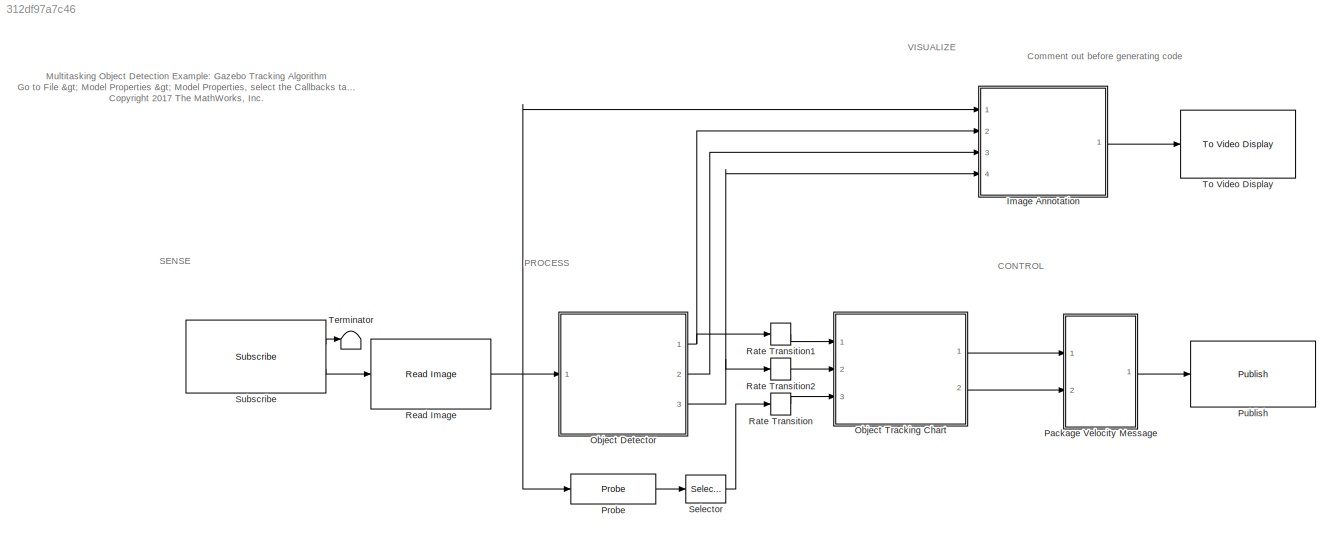
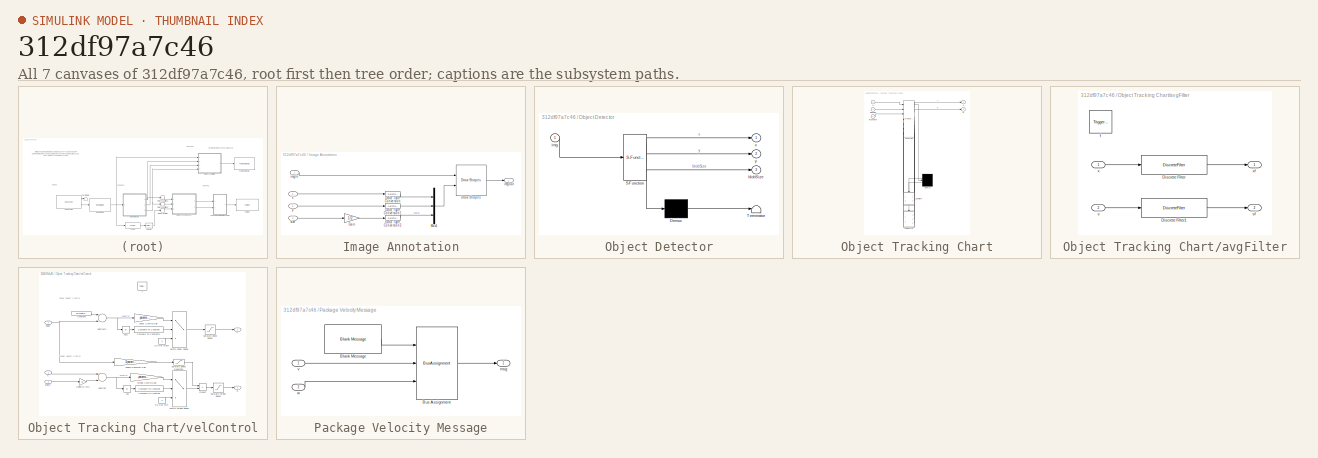
[diagram: thumbnail index - all 7 canvases of the model, root first then tree order]
MODEL slx_312df97a7c46
KIND model
CONFIG AbsTol = auto
CONFIG EnableMultiTasking = on
CONFIG FixedStep = Tfast
CONFIG MaxStep = auto
CONFIG MinStep = auto
CONFIG PreLoadFcn = params = controlParamsGazebo;\nTslow = 0.5;\nTfast = 0.1;\n\nrosshutdown;\nloadIpAddresses;\nrosinit(gazeboIp);
CONFIG RelTol = 1e-3
CONFIG SampleTimeConstraint = Unconstrained
CONFIG Solver = FixedStepDiscrete
CONFIG SolverName = FixedStepDiscrete
CONFIG StartTime = 0.0
CONFIG StopTime = inf
WORKSPACE source: MAT-file member
WORKSPACE SL_ROS_VariableLengthArrays_MaxSizes: struct (value not decoded)
BLOCK [SubSystem] Image Annotation
  Commented = on
  Ports = [4, 1]
  RequestExecContextInheritance = off
  Variant = off
BLOCK [DataTypeConversion] Image Annotation/Data Type Conversion
  OutDataTypeStr = int32
  RndMeth = Floor
  SaturateOnIntegerOverflow = off
BLOCK [DataTypeConversion] Image Annotation/Data Type Conversion1
  OutDataTypeStr = int32
  RndMeth = Floor
  SaturateOnIntegerOverflow = off
BLOCK [DataTypeConversion] Image Annotation/Data Type Conversion2
  OutDataTypeStr = int32
  RndMeth = Floor
  SaturateOnIntegerOverflow = off
BLOCK [Reference] Image Annotation/Draw Shapes  REF=visiontextngfix/Draw Shapes
  Ports = [2, 1]
  SourceBlock = visiontextngfix/Draw Shapes
  SourceProductBaseCode = VP
  SourceProductName = Computer Vision System Toolbox
  SourceType = Draw Shapes
BLOCK [Gain] Image Annotation/Gain
  Gain = 1/2
  OutDataTypeStr = Inherit: Inherit via internal rule
  ParamDataTypeStr = Inherit: Inherit via internal rule
  SaturateOnIntegerOverflow = off
BLOCK [Mux] Image Annotation/Mux1
  DisplayOption = bar
  Inputs = 3
  Ports = [3, 1]
BLOCK [Inport] Image Annotation/imgIn
  IconDisplay = Port number
BLOCK [Outport] Image Annotation/imgOut
  IconDisplay = Port number
BLOCK [Inport] Image Annotation/size
  IconDisplay = Port number
  Port = 4
BLOCK [Inport] Image Annotation/x
  IconDisplay = Port number
  Port = 2
BLOCK [Inport] Image Annotation/y
  IconDisplay = Port number
  Port = 3
BLOCK [SubSystem] Object Detector
  ErrorFcn = Stateflow.Translate.translate
  PermitHierarchicalResolution = ExplicitOnly
  Ports = [1, 3]
  RequestExecContextInheritance = off
  SFBlockType = MATLAB Function
  TreatAsAtomicUnit = on
  Variant = off
BLOCK [Demux] Object Detector/ Demux 
  Outputs = 1
  Ports = [1, 1]
BLOCK [S-Function] Object Detector/ SFunction 
  EnableBusSupport = on
  FunctionName = sf_sfun
  PortCounts = [1 4]
  Ports = [1, 4]
  SFcnIsStateOwnerBlock = off
  SFunctionDeploymentMode = off
  Tag = Stateflow S-Function gazeboExampleMultitasking 1
BLOCK [Terminator] Object Detector/ Terminator 
BLOCK [Outport] Object Detector/blobSize
  IconDisplay = Port number
  Port = 3
BLOCK [Inport] Object Detector/img
  IconDisplay = Port number
BLOCK [Outport] Object Detector/x
  IconDisplay = Port number
BLOCK [Outport] Object Detector/y
  IconDisplay = Port number
  Port = 2
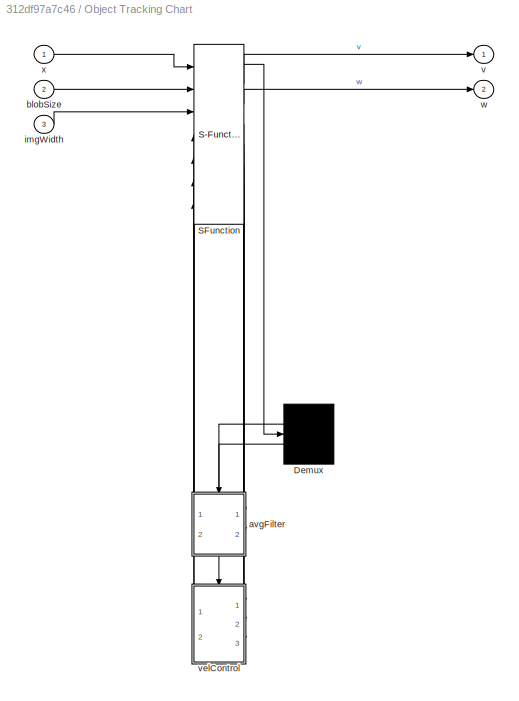
BLOCK [SubSystem] Object Tracking Chart
  ErrorFcn = Stateflow.Translate.translate
  PermitHierarchicalResolution = ExplicitOnly
  Ports = [3, 2]
  RequestExecContextInheritance = off
  SFBlockType = Chart
  TreatAsAtomicUnit = on
  Variant = off
BLOCK [Demux] Object Tracking Chart/ Demux 
  Outputs = 2
  Ports = [1, 2]
BLOCK [S-Function] Object Tracking Chart/ SFunction 
  EnableBusSupport = on
  FunctionName = sf_sfun
  Parameters = params
  PortCounts = [7 8]
  Ports = [7, 8]
  SFcnIsStateOwnerBlock = off
  SFunctionDeploymentMode = off
  Tag = Stateflow S-Function gazeboExampleMultitasking 3
BLOCK [SubSystem] Object Tracking Chart/avgFilter
  Ports = [2, 2, 0, 1]
  PreDeleteFcn = Stateflow.SLINSF.SimulinkMan.removePreDeleteFcn
  RequestExecContextInheritance = off
  UndoDeleteFcn = Stateflow.SLINSF.SimulinkMan.restorePreDeleteFcn
  Variant = off
BLOCK [DiscreteFilter] Object Tracking Chart/avgFilter/Discrete Filter
  Denominator = [params.bufSize]
  InputPortMap = u0
  Numerator = [ones(1,params.bufSize)]
  Ports = [1, 1]
BLOCK [DiscreteFilter] Object Tracking Chart/avgFilter/Discrete Filter1
  Denominator = [params.bufSize]
  InputPortMap = u0
  Numerator = [ones(1,params.bufSize)]
  Ports = [1, 1]
BLOCK [TriggerPort] Object Tracking Chart/avgFilter/f
  CopyFcn = Stateflow.SLINSF.SimulinkMan.removeBlockPreDeleteFcn
  Ports = []
  PreDeleteFcn = Stateflow.SLINSF.SimulinkMan.unsafePredeleteFcn
  StatesWhenEnabling = held
  TriggerType = function-call
  VariantControl = Variant
BLOCK [Inport] Object Tracking Chart/avgFilter/s
  IconDisplay = Port number
  OutDataTypeStr = double
  Port = 2
  PortDimensions = 1
  SignalType = real
  VarSizeSig = No
BLOCK [Outport] Object Tracking Chart/avgFilter/sf
  IconDisplay = Port number
  Port = 2
BLOCK [Inport] Object Tracking Chart/avgFilter/x
  IconDisplay = Port number
  OutDataTypeStr = double
  PortDimensions = 1
  SignalType = real
  VarSizeSig = No
BLOCK [Outport] Object Tracking Chart/avgFilter/xf
  IconDisplay = Port number
BLOCK [Inport] Object Tracking Chart/blobSize
  IconDisplay = Port number
  Port = 2
BLOCK [Inport] Object Tracking Chart/imgWidth
  IconDisplay = Port number
  Port = 3
BLOCK [Outport] Object Tracking Chart/v
  IconDisplay = Port number
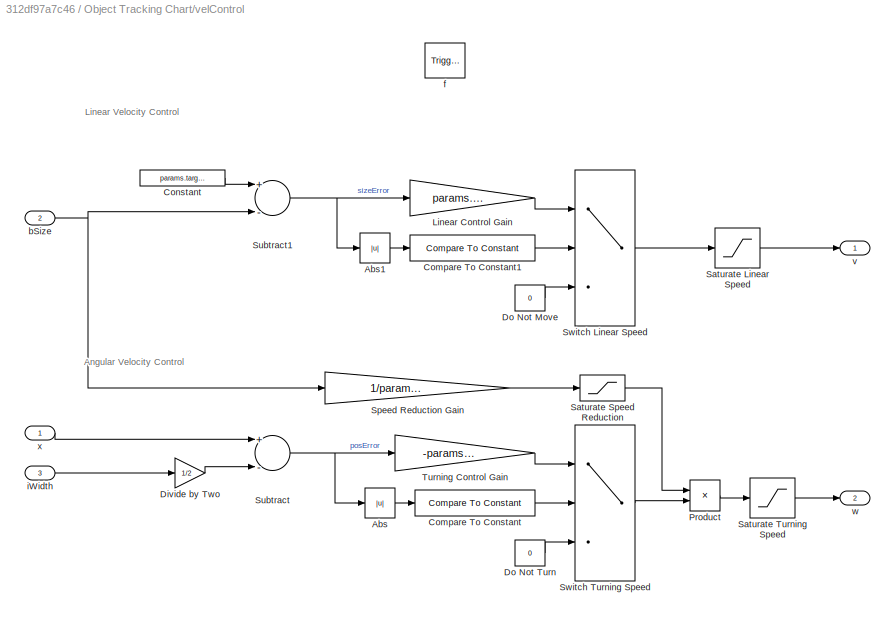
BLOCK [SubSystem] Object Tracking Chart/velControl
  Ports = [3, 2, 0, 1]
  PreDeleteFcn = Stateflow.SLINSF.SimulinkMan.removePreDeleteFcn
  RequestExecContextInheritance = off
  UndoDeleteFcn = Stateflow.SLINSF.SimulinkMan.restorePreDeleteFcn
  Variant = off
BLOCK [Abs] Object Tracking Chart/velControl/Abs
  SaturateOnIntegerOverflow = off
BLOCK [Abs] Object Tracking Chart/velControl/Abs1
  SaturateOnIntegerOverflow = off
BLOCK [Reference] Object Tracking Chart/velControl/Compare To Constant  REF=simulink/Logic and Bit
Operations/Compare
To Constant
  Ports = [1, 1]
  SourceBlock = simulink/Logic and Bit\nOperations/Compare\nTo Constant
  SourceProductBaseCode = SL
  SourceProductName = Simulink
  SourceType = Compare To Constant
BLOCK [Reference] Object Tracking Chart/velControl/Compare To Constant1  REF=simulink/Logic and Bit
Operations/Compare
To Constant
  Ports = [1, 1]
  SourceBlock = simulink/Logic and Bit\nOperations/Compare\nTo Constant
  SourceProductBaseCode = SL
  SourceProductName = Simulink
  SourceType = Compare To Constant
BLOCK [Constant] Object Tracking Chart/velControl/Constant
  Value = params.targetSize
BLOCK [Gain] Object Tracking Chart/velControl/Divide by Two
  Gain = 1/2
  OutDataTypeStr = Inherit: Inherit via internal rule
  ParamDataTypeStr = Inherit: Inherit via internal rule
  SaturateOnIntegerOverflow = off
BLOCK [Constant] Object Tracking Chart/velControl/Do Not Move
  Value = 0
BLOCK [Constant] Object Tracking Chart/velControl/Do Not Turn
  Value = 0
BLOCK [Gain] Object Tracking Chart/velControl/Linear Control Gain
  Gain = params.linVelGain
  OutDataTypeStr = Inherit: Inherit via internal rule
  ParamDataTypeStr = Inherit: Inherit via internal rule
  SaturateOnIntegerOverflow = off
BLOCK [Product] Object Tracking Chart/velControl/Product
  InputSameDT = off
  OutDataTypeStr = Inherit: Inherit via internal rule
  Ports = [2, 1]
  RndMeth = Floor
  SaturateOnIntegerOverflow = off
BLOCK [Saturate] Object Tracking Chart/velControl/Saturate Linear Speed
  InputPortMap = u0
  LowerLimit = -params.maxLinVel
  Ports = [1, 1]
  UpperLimit = params.maxLinVel
BLOCK [Saturate] Object Tracking Chart/velControl/Saturate Speed Reduction
  InputPortMap = u0
  LowerLimit = 0
  Ports = [1, 1]
  UpperLimit = 1
BLOCK [Saturate] Object Tracking Chart/velControl/Saturate Turning Speed
  InputPortMap = u0
  LowerLimit = -params.maxAngVel
  Ports = [1, 1]
  UpperLimit = params.maxAngVel
BLOCK [Gain] Object Tracking Chart/velControl/Speed Reduction Gain
  Gain = 1/params.speedRedSize
  OutDataTypeStr = Inherit: Inherit via internal rule
  ParamDataTypeStr = Inherit: Inherit via internal rule
  SaturateOnIntegerOverflow = off
BLOCK [Sum] Object Tracking Chart/velControl/Subtract
  InputSameDT = off
  Inputs = +-
  OutDataTypeStr = Inherit: Inherit via internal rule
  Ports = [2, 1]
  SaturateOnIntegerOverflow = off
BLOCK [Sum] Object Tracking Chart/velControl/Subtract1
  InputSameDT = off
  Inputs = +-
  OutDataTypeStr = Inherit: Inherit via internal rule
  Ports = [2, 1]
  SaturateOnIntegerOverflow = off
BLOCK [Switch] Object Tracking Chart/velControl/Switch Linear Speed
  Criteria = u2 ~= 0
  InputSameDT = off
  SaturateOnIntegerOverflow = off
BLOCK [Switch] Object Tracking Chart/velControl/Switch Turning Speed
  Criteria = u2 ~= 0
  InputSameDT = off
  SaturateOnIntegerOverflow = off
BLOCK [Gain] Object Tracking Chart/velControl/Turning Control Gain
  Gain = -params.angVelGain
  OutDataTypeStr = Inherit: Inherit via internal rule
  ParamDataTypeStr = Inherit: Inherit via internal rule
  SaturateOnIntegerOverflow = off
BLOCK [Inport] Object Tracking Chart/velControl/bSize
  IconDisplay = Port number
  OutDataTypeStr = double
  Port = 2
  PortDimensions = 1
  SignalType = real
  VarSizeSig = No
BLOCK [TriggerPort] Object Tracking Chart/velControl/f
  CopyFcn = Stateflow.SLINSF.SimulinkMan.removeBlockPreDeleteFcn
  Ports = []
  PreDeleteFcn = Stateflow.SLINSF.SimulinkMan.unsafePredeleteFcn
  StatesWhenEnabling = held
  TriggerType = function-call
  VariantControl = Variant
BLOCK [Inport] Object Tracking Chart/velControl/iWidth
  IconDisplay = Port number
  OutDataTypeStr = double
  Port = 3
  PortDimensions = 1
  SignalType = real
  VarSizeSig = No
BLOCK [Outport] Object Tracking Chart/velControl/v
  IconDisplay = Port number
  InitialOutput = 0
  OutputWhenDisabled = reset
BLOCK [Outport] Object Tracking Chart/velControl/w
  IconDisplay = Port number
  InitialOutput = 0
  OutputWhenDisabled = reset
  Port = 2
BLOCK [Inport] Object Tracking Chart/velControl/x
  IconDisplay = Port number
  OutDataTypeStr = double
  PortDimensions = 1
  SignalType = real
  VarSizeSig = No
BLOCK [Outport] Object Tracking Chart/w
  IconDisplay = Port number
  Port = 2
BLOCK [Inport] Object Tracking Chart/x
  IconDisplay = Port number
BLOCK [SubSystem] Package Velocity Message
  Ports = [2, 1]
  RequestExecContextInheritance = off
  Variant = off
BLOCK [Reference] Package Velocity Message/Blank Message  REF=robotlib/Blank Message
  Ports = [0, 1]
  SourceBlock = robotlib/Blank Message
  SourceLibraryInfo = This block requires Robotics System Toolbox
  SourceProductBaseCode = RO
  SourceProductName = Robotics System Toolbox
  SourceType = ROS Blank Message
BLOCK [BusAssignment] Package Velocity Message/Bus Assignment
  AssignedSignals = Linear.X,Angular.Z
  Ports = [3, 1]
BLOCK [Outport] Package Velocity Message/msg
  IconDisplay = Port number
BLOCK [Inport] Package Velocity Message/v
  IconDisplay = Port number
BLOCK [Inport] Package Velocity Message/w
  IconDisplay = Port number
  Port = 2
BLOCK [Probe] Probe
  Ports = [1, 1]
  ProbeComplexSignal = off
  ProbeSampleTime = off
  ProbeSignalDimensions = on
  ProbeWidth = off
BLOCK [Reference] Publish  REF=robotlib/Publish
  Ports = [1]
  SourceBlock = robotlib/Publish
  SourceLibraryInfo = This block requires Robotics System Toolbox
  SourceProductBaseCode = RO
  SourceProductName = Robotics System Toolbox
  SourceType = ROS Publish
BLOCK [RateTransition] Rate Transition
  Deterministic = off
BLOCK [RateTransition] Rate Transition1
  Deterministic = off
BLOCK [RateTransition] Rate Transition2
  Deterministic = off
BLOCK [Reference] Read Image  REF=robotlib/Read Image
  Ports = [1, 1]
  SourceBlock = robotlib/Read Image
  SourceLibraryInfo = This block requires Robotics System Toolbox
  SourceProductBaseCode = RO
  SourceProductName = Robotics System Toolbox
  SourceType = robotics.slros.internal.block.ReadImage
BLOCK [Selector] Selector
  IndexOptions = Index vector (dialog)
  Indices = 2
  InputPortWidth = 3
  OutputSizes = 1
  Ports = [1, 1]
BLOCK [Reference] Subscribe  REF=robotlib/Subscribe
  Ports = [0, 2]
  SourceBlock = robotlib/Subscribe
  SourceLibraryInfo = This block requires Robotics System Toolbox
  SourceProductBaseCode = RO
  SourceProductName = Robotics System Toolbox
  SourceType = ROS Subscribe
BLOCK [Terminator] Terminator
BLOCK [Reference] To Video Display  REF=visionsinks/To Video Display
  Commented = on
  Ports = [1]
  SourceBlock = visionsinks/To Video Display
  SourceProductBaseCode = VP
  SourceProductName = Computer Vision System Toolbox
  SourceType = To Video Display
ANNOTATION (root): Multitasking Object Detection Example: Gazebo Tracking Algorithm Go to File > Model Properties > Model Properties , select the Callbacks tab, and go to PreLoadFcn . Here, you can set up MATLAB code to run when loading the model, such as initalizing ROS with the correct IP address. <copyright redacted>
ANNOTATION (root): CONTROL
ANNOTATION (root): Comment out before generating code
ANNOTATION (root): PROCESS
ANNOTATION (root): SENSE
ANNOTATION (root): VISUALIZE
ANNOTATION Object Tracking Chart/velControl: Angular Velocity Control
ANNOTATION Object Tracking Chart/velControl: Linear Velocity Control
LINE Image Annotation/Data Type Conversion1:1 -> Image Annotation/Mux1:2
LINE Image Annotation/Data Type Conversion2:1 -> Image Annotation/Mux1:3
LINE Image Annotation/Data Type Conversion:1 -> Image Annotation/Mux1:1
LINE Image Annotation/Draw Shapes:1 -> Image Annotation/imgOut:1
LINE Image Annotation/Gain:1 -> Image Annotation/Data Type Conversion2:1
LINE Image Annotation/Mux1:1 -> Image Annotation/Draw Shapes:2
LINE Image Annotation/imgIn:1 -> Image Annotation/Draw Shapes:1
LINE Image Annotation/size:1 -> Image Annotation/Gain:1
LINE Image Annotation/x:1 -> Image Annotation/Data Type Conversion:1
LINE Image Annotation/y:1 -> Image Annotation/Data Type Conversion1:1
LINE Image Annotation:1 -> To Video Display:1
NET Object Detector:1 -> Image Annotation:2, Rate Transition1:1
LINE Object Detector:2 -> Image Annotation:3
NET Object Detector:3 -> Image Annotation:4, Rate Transition2:1
LINE Object Tracking Chart:1 -> Package Velocity Message:1
LINE Object Tracking Chart:2 -> Package Velocity Message:2
LINE Package Velocity Message/Blank Message:1 -> Package Velocity Message/Bus Assignment:1
LINE Package Velocity Message/Bus Assignment:1 -> Package Velocity Message/msg:1
LINE Package Velocity Message/v:1 -> Package Velocity Message/Bus Assignment:2
LINE Package Velocity Message/w:1 -> Package Velocity Message/Bus Assignment:3
LINE Package Velocity Message:1 -> Publish:1
LINE Probe:1 -> Selector:1
LINE Rate Transition1:1 -> Object Tracking Chart:1
LINE Rate Transition2:1 -> Object Tracking Chart:2
LINE Rate Transition:1 -> Object Tracking Chart:3
NET Read Image:1 -> Image Annotation:1, Object Detector:1, Probe:1
LINE Selector:1 -> Rate Transition:1
LINE Subscribe:1 -> Terminator:1
LINE Subscribe:2 -> Read Image:1
note: NET lines group one-source signal fan-out (src -> all destinations, sorted); 1:1 wires keep LINE
CHART Object Detector states=1 transitions=1
  STATE_LABEL 'eML_blk_kernel()'
  STATE_LABEL 'SCRIPT:\nfunction [x,y,blobSize] = CircleDetection(img)\n    \n    % Initialize outputs\n    x = 0;\n    y = 0;\n    blobSize = 0;\n    \n    % Call external function\n    resizeScale = 0.5;\n    [x,y,blobSize] = detectCircle(img,resizeScale);\n\nend\n'
CHART Object Tracking Chart states=8 transitions=17
  STATE_LABEL 'TrackMarker\nen,du:\n[xFilt,sizeFilt] = avgFilter(x,blobSize);'
  STATE_LABEL 'Normal\nen,du:\n[v,w] = velControl(xFilt,sizeFilt,imgWidth);'
  STATE_LABEL 'Abnormal'
  STATE_LABEL 'Scan\nen:\nv = 0;\nw = params.maxAngVel/2;'
  STATE_LABEL 'Stop\nen:\nv = 0;\nw = 0;'
  STATE_LABEL '[count >= 50 && ...\ncount <= 500]'
  STATE_LABEL '[count >= 500]'
  STATE_LABEL '[count >= ...\nparams.maxCounts]'
  STATE_LABEL '[count < ...\nparams.maxCounts]'
  STATE_LABEL 'Normal\nen,du:\n[v,w] = velControl(xFilt,sizeFilt,imgWidth);'
  STATE_LABEL 'Abnormal'
  STATE_LABEL 'Scan\nen:\nv = 0;\nw = params.maxAngVel/2;'
  STATE_LABEL 'Stop\nen:\nv = 0;\nw = 0;'
  STATE_LABEL '[count >= 50 && ...\ncount <= 500]'
  STATE_LABEL '[count >= 500]'
  STATE_LABEL 'Scan\nen:\nv = 0;\nw = params.maxAngVel/2;'
  STATE_LABEL 'Stop\nen:\nv = 0;\nw = 0;'
  STATE_LABEL 'DetectOutliers\n'
  STATE_LABEL '{ \ncount = 0;\nxPrev = 0;\n}'
  STATE_LABEL '% Test for outlier\n[abs(x-xPrev)>=params.maxDisp || ... \nblobSize<=params.minSize || ...\nblobSize>=params.maxSize]'
  STATE_LABEL '% Reset counter\n{count = 0;}'
  STATE_LABEL '% Increment counter\n% with saturation'
  STATE_LABEL '[count<1000]'
  STATE_LABEL '{count=count+1;}'
  STATE_LABEL '% Update previous location value\n{xPrev = x;}'
  STATE_LABEL '[xf,sf] = avgFilter(x,s)'
  STATE_LABEL '[v,w] = velControl(x,bSize,iWidth)'
